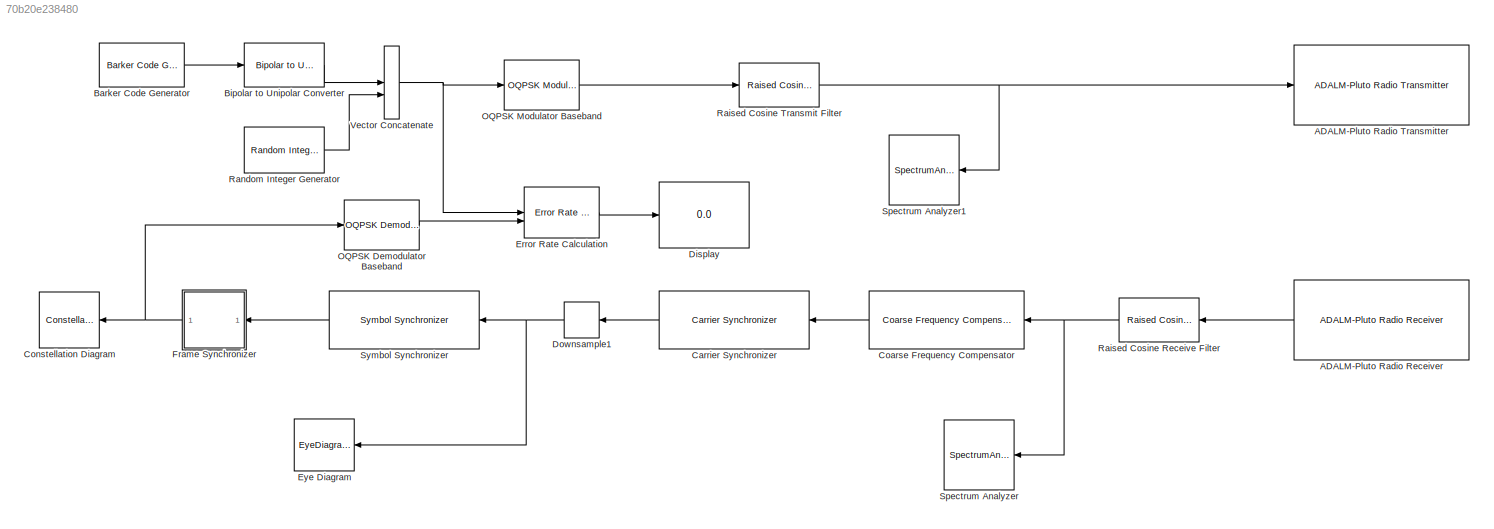
MODEL slx_70b20e238480
KIND model
CONFIG AbsTol = auto
CONFIG EnableMultiTasking = off
CONFIG FixedStep = auto
CONFIG MaxStep = auto
CONFIG MinStep = auto
CONFIG RelTol = 1e-3
CONFIG SampleTimeConstraint = Unconstrained
CONFIG SolverName = VariableStepAuto
CONFIG StartTime = 0.0
CONFIG StopTime = 1
BLOCK [Reference] ADALM-Pluto Radio Receiver  REF=plutoradiolib/ADALM-Pluto Radio
Receiver
  NameLocation = top
  SourceBlock = plutoradiolib/ADALM-Pluto Radio\nReceiver
  SourceType = comm.SDRRxPluto
BLOCK [Reference] ADALM-Pluto Radio Transmitter  REF=plutoradiolib/ADALM-Pluto Radio
Transmitter
  SourceBlock = plutoradiolib/ADALM-Pluto Radio\nTransmitter
  SourceType = comm.SDRTxPluto
BLOCK [Reference] Barker Code Generator  REF=commseqgen3/Barker Code
Generator
  SourceBlock = commseqgen3/Barker Code\nGenerator
  SourceType = Barker Code Generator
BLOCK [Reference] Bipolar to Unipolar Converter  REF=commutil2/Bipolar to
Unipolar
Converter
  SourceBlock = commutil2/Bipolar to\nUnipolar\nConverter
  SourceType = Bipolar to Unipolar Converter
BLOCK [Reference] Carrier Synchronizer  REF=commsync2/Carrier Synchronizer
  NameLocation = top
  SourceBlock = commsync2/Carrier Synchronizer
  SourceType = Carrier Synchronizer
BLOCK [Reference] Coarse Frequency Compensator  REF=commrfcorlib/Coarse Frequency
Compensator
  LibrarySourceBlock = commsync2/Coarse Frequency\nCompensator
  NameLocation = top
  SourceBlock = commrfcorlib/Coarse Frequency\nCompensator
  SourceType = Coarse Frequency Compensator
BLOCK [ConstellationDiagram] Constellation Diagram
  GraphicalSettings = {"Style":{"BackgroundColor":[0.12941176470588237,0.12941176470588237,0.12941176470588237],"AxesColor":[0.07058823529411765,0.07058823529411765,0.07058823529411765],"LabelsColor":[0.8509803921568627,0.8509803921568627,0.8509803921568627],"PreserveColors":false,"LineStyle":["NONE","NONE"],"LineWidth":[1,1],"LineColor":[[1,0.9098039215686274,0.39215686274509803],[1,0,0]],"Marker":[".","+"],"FontSize"...<+214ch>
  NameLocation = top
  ReferenceConstellation = [0.7071+0.7071i          -0.7071+0.7071i          -0.7071-0.7071i            0.707-0.7071i]
  ScopeFrameLocation = window
  ShowLegend = on
  WasSavedAsWebScope = on
  WindowPosition = [452.000000,158.000000,1169.000000,730.000000,]
BLOCK [Display] Display
  Decimation = 1
BLOCK [DownSample] Downsample1
  N = 1
  NameLocation = top
BLOCK [Reference] Error Rate Calculation  REF=commsink2/Error Rate
Calculation
  SourceBlock = commsink2/Error Rate\nCalculation
  SourceType = Error Rate Calculation
BLOCK [EyeDiagramBlock] Eye Diagram
  Commented = on
  NameLocation = top
  ScopeFrameLocation = window
  WasSavedAsWebScope = on
  WindowPosition = [962.000000,169.000000,817.000000,543.000000,]
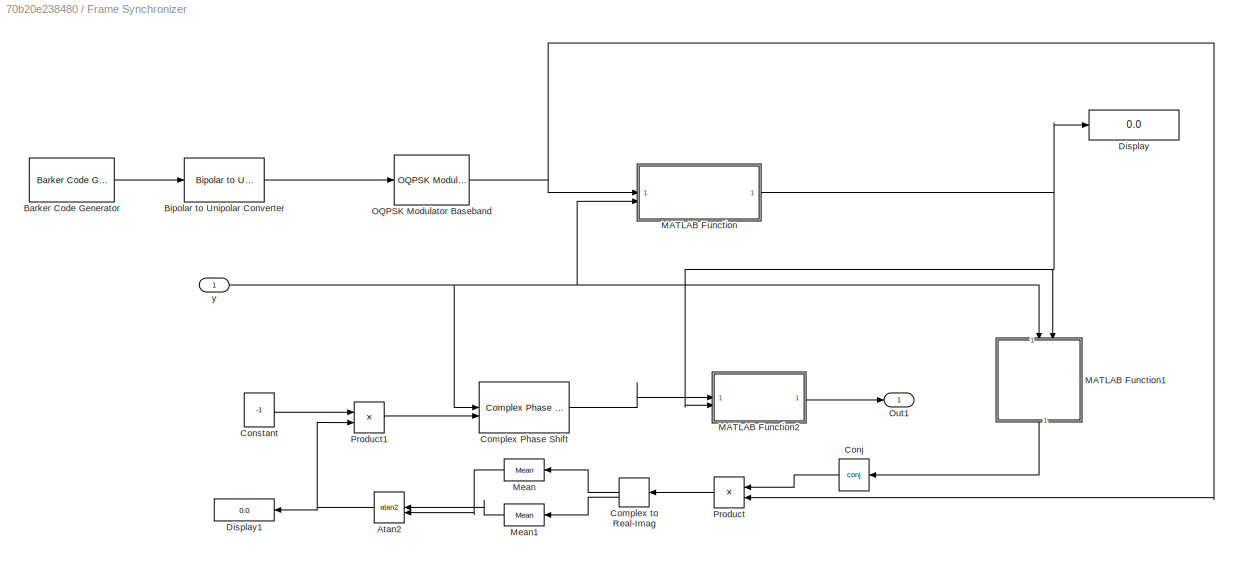
BLOCK [SubSystem] Frame Synchronizer
  NameLocation = top
BLOCK [Trigonometry] Frame Synchronizer/Atan2
  NameLocation = top
  Operator = atan2
BLOCK [Reference] Frame Synchronizer/Barker Code Generator  REF=commseqgen3/Barker Code
Generator
  SourceBlock = commseqgen3/Barker Code\nGenerator
  SourceType = Barker Code Generator
BLOCK [Reference] Frame Synchronizer/Bipolar to Unipolar Converter  REF=commutil2/Bipolar to
Unipolar
Converter
  SourceBlock = commutil2/Bipolar to\nUnipolar\nConverter
  SourceType = Bipolar to Unipolar Converter
BLOCK [Reference] Frame Synchronizer/Complex Phase Shift  REF=commutil2/Complex Phase
Shift
  SourceBlock = commutil2/Complex Phase\nShift
  SourceType = Complex Phase Shift
BLOCK [ComplexToRealImag] Frame Synchronizer/Complex to Real-Imag
  NameLocation = top
BLOCK [Math] Frame Synchronizer/Conj
  NameLocation = top
  Operator = conj
BLOCK [Constant] Frame Synchronizer/Constant
  SampleTime = -1
  Value = -1
  VectorParams1D = off
BLOCK [Display] Frame Synchronizer/Display
  Decimation = 1
BLOCK [Display] Frame Synchronizer/Display1
  Decimation = 1
  NameLocation = top
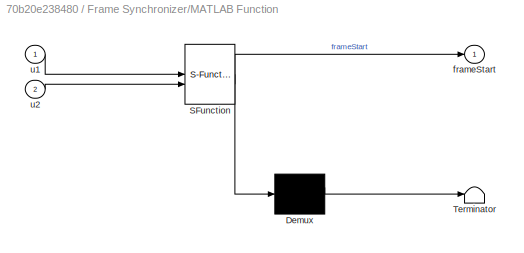
BLOCK [SubSystem] Frame Synchronizer/MATLAB Function
  ErrorFcn = Stateflow.Translate.translate
  PermitHierarchicalResolution = ExplicitOnly
  SFBlockType = MATLAB Function
  TreatAsAtomicUnit = on
BLOCK [Demux] Frame Synchronizer/MATLAB Function/ Demux 
  Outputs = 1
BLOCK [S-Function] Frame Synchronizer/MATLAB Function/ SFunction 
  EnableBusSupport = on
  FunctionName = sf_sfun
  PortCounts = [2 2]
  SFcnIsStateOwnerBlock = off
  SFunctionDeploymentMode = off
  Tag = Stateflow S-Function 2
BLOCK [Terminator] Frame Synchronizer/MATLAB Function/ Terminator 
BLOCK [Outport] Frame Synchronizer/MATLAB Function/frameStart
BLOCK [Inport] Frame Synchronizer/MATLAB Function/u1
BLOCK [Inport] Frame Synchronizer/MATLAB Function/u2
  Port = 2
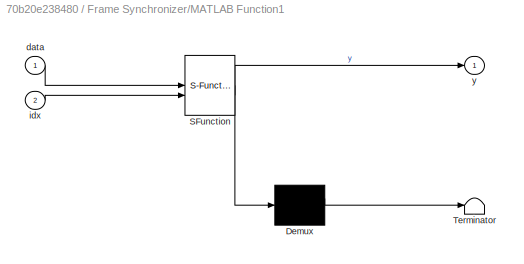
BLOCK [SubSystem] Frame Synchronizer/MATLAB Function1
  ErrorFcn = Stateflow.Translate.translate
  NameLocation = left
  PermitHierarchicalResolution = ExplicitOnly
  SFBlockType = MATLAB Function
  TreatAsAtomicUnit = on
BLOCK [Demux] Frame Synchronizer/MATLAB Function1/ Demux 
  Outputs = 1
BLOCK [S-Function] Frame Synchronizer/MATLAB Function1/ SFunction 
  EnableBusSupport = on
  FunctionName = sf_sfun
  PortCounts = [2 2]
  SFcnIsStateOwnerBlock = off
  SFunctionDeploymentMode = off
  Tag = Stateflow S-Function 1
BLOCK [Terminator] Frame Synchronizer/MATLAB Function1/ Terminator 
BLOCK [Inport] Frame Synchronizer/MATLAB Function1/data
BLOCK [Inport] Frame Synchronizer/MATLAB Function1/idx
  Port = 2
BLOCK [Outport] Frame Synchronizer/MATLAB Function1/y
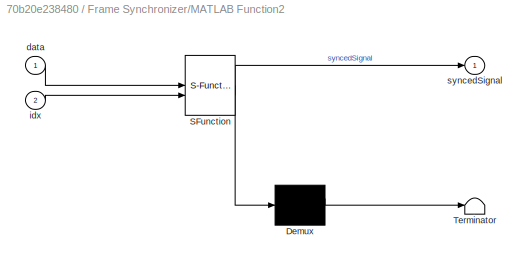
BLOCK [SubSystem] Frame Synchronizer/MATLAB Function2
  ErrorFcn = Stateflow.Translate.translate
  PermitHierarchicalResolution = ExplicitOnly
  SFBlockType = MATLAB Function
  TreatAsAtomicUnit = on
BLOCK [Demux] Frame Synchronizer/MATLAB Function2/ Demux 
  Outputs = 1
BLOCK [S-Function] Frame Synchronizer/MATLAB Function2/ SFunction 
  EnableBusSupport = on
  FunctionName = sf_sfun
  PortCounts = [2 2]
  SFcnIsStateOwnerBlock = off
  SFunctionDeploymentMode = off
  Tag = Stateflow S-Function 3
BLOCK [Terminator] Frame Synchronizer/MATLAB Function2/ Terminator 
BLOCK [Inport] Frame Synchronizer/MATLAB Function2/data
BLOCK [Inport] Frame Synchronizer/MATLAB Function2/idx
  Port = 2
BLOCK [Outport] Frame Synchronizer/MATLAB Function2/syncedSignal
BLOCK [Reference] Frame Synchronizer/Mean  REF=dspstat3/Mean
  NameLocation = top
  SourceBlock = dspstat3/Mean
  SourceType = Mean
  UserDataPersistent = on
BLOCK [Reference] Frame Synchronizer/Mean1  REF=dspstat3/Mean
  NameLocation = top
  SourceBlock = dspstat3/Mean
  SourceType = Mean
  UserDataPersistent = on
BLOCK [Reference] Frame Synchronizer/OQPSK Modulator Baseband  REF=commdigbbndpm3/OQPSK
Modulator
Baseband
  SourceBlock = commdigbbndpm3/OQPSK\nModulator\nBaseband
  SourceType = OQPSK Modulator Baseband
  UserDataPersistent = on
BLOCK [Outport] Frame Synchronizer/Out1
BLOCK [Product] Frame Synchronizer/Product
  NameLocation = top
BLOCK [Product] Frame Synchronizer/Product1
BLOCK [Inport] Frame Synchronizer/y
BLOCK [Reference] OQPSK Demodulator Baseband  REF=commdigbbndpm3/OQPSK
Demodulator
Baseband
  SourceBlock = commdigbbndpm3/OQPSK\nDemodulator\nBaseband
  SourceType = OQPSK Demodulator Baseband
  UserDataPersistent = on
BLOCK [Reference] OQPSK Modulator Baseband  REF=commdigbbndpm3/OQPSK
Modulator
Baseband
  SourceBlock = commdigbbndpm3/OQPSK\nModulator\nBaseband
  SourceType = OQPSK Modulator Baseband
  UserDataPersistent = on
BLOCK [Reference] Raised Cosine Receive Filter  REF=commfilt2/Raised Cosine
Receive Filter
  LibrarySourceBlock = commhdlfilt/Raised Cosine\nReceive Filter
  NameLocation = top
  SourceBlock = commfilt2/Raised Cosine\nReceive Filter
  SourceType = Raised Cosine Receive Filter
  UserDataPersistent = on
BLOCK [Reference] Raised Cosine Transmit Filter  REF=commfilt2/Raised Cosine
Transmit Filter
  LibrarySourceBlock = commhdlfilt/Raised Cosine\nTransmit Filter
  SourceBlock = commfilt2/Raised Cosine\nTransmit Filter
  SourceType = Raised Cosine Transmit Filter
  UserDataPersistent = on
BLOCK [Reference] Random Integer Generator  REF=commrandsrc3/Random Integer
Generator
  SourceBlock = commrandsrc3/Random Integer\nGenerator
  SourceType = Random Integer Generator
BLOCK [SpectrumAnalyzer] Spectrum Analyzer
  AllowFFTLengthLessThanSamplesPerUpdate = on
  AveragingMethod = Exponential
  Commented = on
  GraphicalSettings = {"GraphicalSettings":{"Style":{"BackgroundColor":[0.12941176470588237,0.12941176470588237,0.12941176470588237],"AxesColor":[0,0,0],"LabelsColor":[0.6862745098039216,0.6862745098039216,0.6862745098039216],"PreserveColors":false,"Visible":[true],"LineStyle":["-"],"LineWidth":[1.5],"BarWidth":[0.9],"LineColor":[[1,0.9098039215686274,0.39215686274509803]],"LineFaceAlpha":[1],"LineEdgeAlpha":[1],"Marke...<+945ch>
  Method = Welch
  NameLocation = top
  ScopeFrameLocation = window
  ScopeSpecificationString = spbscopes.SpectrumAnalyzerBlockCfg('CurrentConfiguration', extmgr.ConfigurationSet(extmgr.Configuration('Core','General UI',true),extmgr.Configuration('Core','Source UI',true),extmgr.Configuration('Sources','WiredSimulink',true),extmgr.Configuration('Visuals','Spectrum',true,'AxesProperties',struct('Color',{[0 0 0],[0 0 0]},'XColor',{[0.686274509803922 0.686274509803922 0.686274509803922],[0.68627...<+1369ch>
  SelectedToolstripTab = spectrumAnalyzerToolstrip.channelMeasurementsTab
  Tag = simrfV2util1/Spectrum\nAnalyzer
  WasSavedAsWebScope = on
  WindowPosition = [368.000000,488.000000,1331.000000,721.000000,]
  YLimits = [-80.22972228568331,13.852155026833934]
BLOCK [SpectrumAnalyzer] Spectrum Analyzer1
  AllowFFTLengthLessThanSamplesPerUpdate = on
  AveragingMethod = Exponential
  Commented = on
  GraphicalSettings = {"GraphicalSettings":{"Style":{"BackgroundColor":[0.12941176470588237,0.12941176470588237,0.12941176470588237],"AxesColor":[0,0,0],"LabelsColor":[0.6862745098039216,0.6862745098039216,0.6862745098039216],"PreserveColors":false,"Visible":[true],"LineStyle":["-"],"LineWidth":[1.5],"BarWidth":[0.9],"LineColor":[[1,0.9098039215686274,0.39215686274509803]],"LineFaceAlpha":[1],"LineEdgeAlpha":[1],"Marke...<+945ch>
  Method = Welch
  NameLocation = top
  ScopeFrameLocation = window
  ScopeSpecificationString = spbscopes.SpectrumAnalyzerBlockCfg('CurrentConfiguration', extmgr.ConfigurationSet(extmgr.Configuration('Core','General UI',true),extmgr.Configuration('Core','Source UI',true),extmgr.Configuration('Sources','WiredSimulink',true),extmgr.Configuration('Visuals','Spectrum',true,'AxesProperties',struct('Color',{[0 0 0],[0 0 0]},'XColor',{[0.686274509803922 0.686274509803922 0.686274509803922],[0.68627...<+1369ch>
  SelectedToolstripTab = spectrumAnalyzerToolstrip.channelMeasurementsTab
  Tag = simrfV2util1/Spectrum\nAnalyzer
  WasSavedAsWebScope = on
  WindowPosition = [386.000000,437.000000,1331.000000,721.000000,]
  YLimits = [-112.75907922079537,49.472186202190024]
BLOCK [Reference] Symbol Synchronizer  REF=commsync2/Symbol Synchronizer
  NameLocation = top
  SourceBlock = commsync2/Symbol Synchronizer
  SourceType = Symbol Synchronizer
BLOCK [Concatenate] Vector Concatenate
LINE ADALM-Pluto Radio Receiver:1 -> Raised Cosine Receive Filter:1
LINE Barker Code Generator:1 -> Bipolar to Unipolar Converter:1
LINE Bipolar to Unipolar Converter:1 -> Vector Concatenate:1
LINE Carrier Synchronizer:1 -> Downsample1:1
LINE Coarse Frequency Compensator:1 -> Carrier Synchronizer:1
NET Downsample1:1 -> Eye Diagram:1, Symbol Synchronizer:1
LINE Error Rate Calculation:1 -> Display:1
NET Frame Synchronizer/Atan2:1 -> Frame Synchronizer/Display1:1, Frame Synchronizer/Product1:2
LINE Frame Synchronizer/Barker Code Generator:1 -> Frame Synchronizer/Bipolar to Unipolar Converter:1
LINE Frame Synchronizer/Bipolar to Unipolar Converter:1 -> Frame Synchronizer/OQPSK Modulator Baseband:1
LINE Frame Synchronizer/Complex Phase Shift:1 -> Frame Synchronizer/MATLAB Function2:1
LINE Frame Synchronizer/Complex to Real-Imag:1 -> Frame Synchronizer/Mean:1
LINE Frame Synchronizer/Complex to Real-Imag:2 -> Frame Synchronizer/Mean1:1
LINE Frame Synchronizer/Conj:1 -> Frame Synchronizer/Product:1
LINE Frame Synchronizer/Constant:1 -> Frame Synchronizer/Product1:1
LINE Frame Synchronizer/MATLAB Function1:1 -> Frame Synchronizer/Conj:1
LINE Frame Synchronizer/MATLAB Function2:1 -> Frame Synchronizer/Out1:1
NET Frame Synchronizer/MATLAB Function:1 -> Frame Synchronizer/Display:1, Frame Synchronizer/MATLAB Function1:2, Frame Synchronizer/MATLAB Function2:2
LINE Frame Synchronizer/Mean1:1 -> Frame Synchronizer/Atan2:1
LINE Frame Synchronizer/Mean:1 -> Frame Synchronizer/Atan2:2
NET Frame Synchronizer/OQPSK Modulator Baseband:1 -> Frame Synchronizer/MATLAB Function:1, Frame Synchronizer/Product:2
LINE Frame Synchronizer/Product1:1 -> Frame Synchronizer/Complex Phase Shift:2
LINE Frame Synchronizer/Product:1 -> Frame Synchronizer/Complex to Real-Imag:1
NET Frame Synchronizer/y:1 -> Frame Synchronizer/Complex Phase Shift:1, Frame Synchronizer/MATLAB Function1:1, Frame Synchronizer/MATLAB Function:2
NET Frame Synchronizer:1 -> Constellation Diagram:1, OQPSK Demodulator Baseband:1
LINE OQPSK Demodulator Baseband:1 -> Error Rate Calculation:2
LINE OQPSK Modulator Baseband:1 -> Raised Cosine Transmit Filter:1
NET Raised Cosine Receive Filter:1 -> Coarse Frequency Compensator:1, Spectrum Analyzer:1
NET Raised Cosine Transmit Filter:1 -> ADALM-Pluto Radio Transmitter:1, Spectrum Analyzer1:1
LINE Random Integer Generator:1 -> Vector Concatenate:2
LINE Symbol Synchronizer:1 -> Frame Synchronizer:1
NET Vector Concatenate:1 -> Error Rate Calculation:1, OQPSK Modulator Baseband:1
note: NET lines group one-source signal fan-out (src -> all destinations, sorted); 1:1 wires keep LINE
CHART Frame Synchronizer/MATLAB Function states=1 transitions=1
  STATE_LABEL 'eML_blk_kernel()'
  STATE_LABEL 'SCRIPT:\nfunction frameStart = findFrameStart(u1, u2)\n\n    [corr, lags] = xcorr(u2, u1);\n    [~, idx] = max(abs(corr));\n    \n    frameStart = lags(idx) + 1;\n\n\n'
CHART Frame Synchronizer/MATLAB Function2 states=1 transitions=1
  STATE_LABEL 'eML_blk_kernel()'
  STATE_LABEL 'SCRIPT:\nfunction syncedSignal = frameSync(data,idx)\nsyncedSignal=data(idx:idx+43); % len(frame) - 1\n'
CHART Frame Synchronizer/MATLAB Function1 states=1 transitions=1
  STATE_LABEL 'eML_blk_kernel()'
  STATE_LABEL 'SCRIPT:\nfunction y = rxTrainingSignal(data,idx)\ny=data(idx:idx+11);\n'
CHART  states=0 transitions=0
CHART  states=0 transitions=0
CHART  states=0 transitions=0
